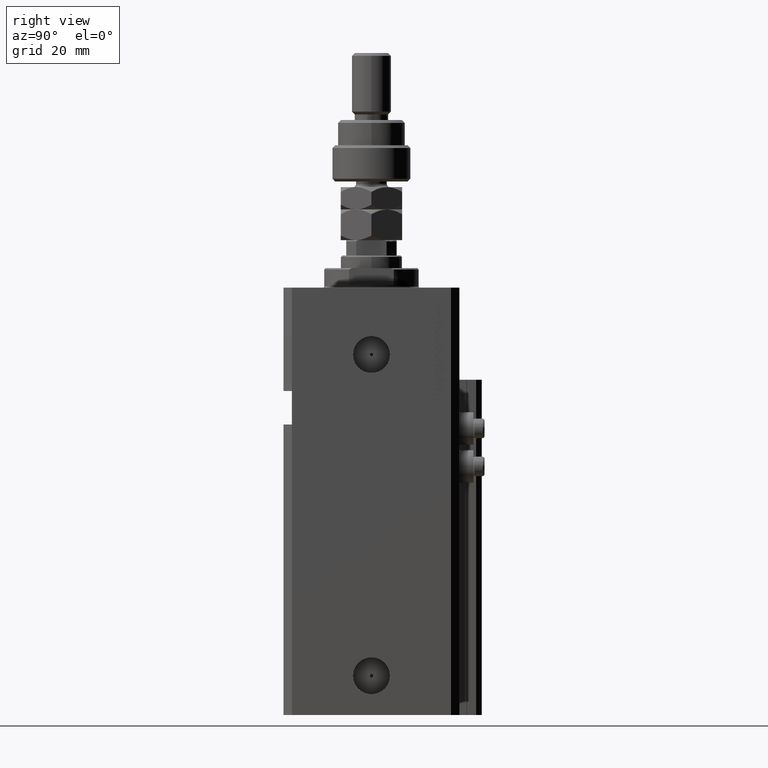
[diagram: clean part render]
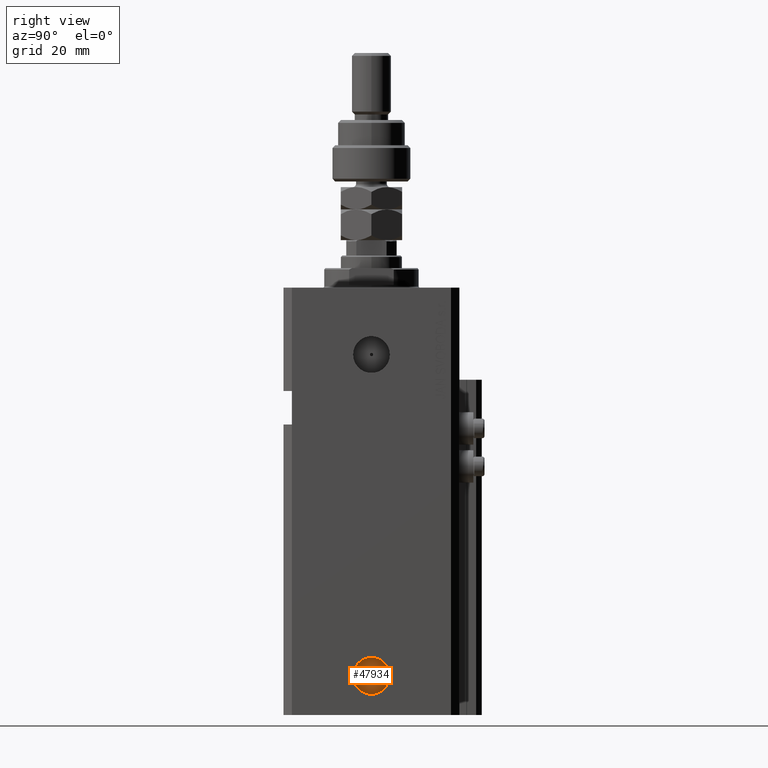
[diagram: same view with one face highlighted and labeled with its STEP entity id]
A machine part, right view. The second image highlights one B-rep face of the part: STEP entity #47934.
In plain terms, the highlighted planar face has unit normal (1, -0, 0).
Its self-contained STEP definition (entity closure, byte-faithful):
#145 = CIRCLE ( 'NONE', #46692, 0.6250000000000066613 ) ;
#1316 = EDGE_LOOP ( 'NONE', ( #24756, #35277 ) ) ;
#2272 = ORIENTED_EDGE ( 'NONE', *, *, #25096, .T. ) ;
#3832 = AXIS2_PLACEMENT_3D ( 'NONE', #50601, #43054, #38880 ) ;
#5837 = DIRECTION ( 'NONE',  ( 1.000000000000000000, -1.334402673828349134E-14, 0.000000000000000000 ) ) ;
#7003 = CARTESIAN_POINT ( 'NONE',  ( 29.40000000000025793, -0.6250000000002093881, -138.9999999999999432 ) ) ;
#11736 = DIRECTION ( 'NONE',  ( 1.000000000000000000, -1.334402673828349134E-14, 0.000000000000000000 ) ) ;
#11925 = FACE_OUTER_BOUND ( 'NONE', #33399, .T. ) ;
#12183 = DIRECTION ( 'NONE',  ( 1.334402673828349134E-14, 1.000000000000000000, 0.000000000000000000 ) ) ;
#12363 = AXIS2_PLACEMENT_3D ( 'NONE', #14167, #5837, #21727 ) ;
#14167 = CARTESIAN_POINT ( 'NONE',  ( 29.40000000000026503, -2.028760275683516938E-13, -138.9999999999999432 ) ) ;
#14527 = VERTEX_POINT ( 'NONE', #32521 ) ;
#15039 = CARTESIAN_POINT ( 'NONE',  ( 29.40000000000026503, -2.028760275683516938E-13, -138.9999999999999432 ) ) ;
#16091 = CARTESIAN_POINT ( 'NONE',  ( 29.40000000000026503, -2.028760275683516938E-13, -138.9999999999999432 ) ) ;
#20047 = AXIS2_PLACEMENT_3D ( 'NONE', #24501, #11736, #40351 ) ;
#20051 = EDGE_CURVE ( 'NONE', #25792, #46973, #49551, .T. ) ;
#21727 = DIRECTION ( 'NONE',  ( 1.318178933113078171E-14, 1.000000000000000000, 0.000000000000000000 ) ) ;
#23664 = ORIENTED_EDGE ( 'NONE', *, *, #34861, .T. ) ;
#24501 = CARTESIAN_POINT ( 'NONE',  ( 29.40000000000026503, -2.028760275683516938E-13, -138.9999999999999432 ) ) ;
#24756 = ORIENTED_EDGE ( 'NONE', *, *, #39720, .F. ) ;
#25096 = EDGE_CURVE ( 'NONE', #14527, #39816, #39756, .T. ) ;
#25792 = VERTEX_POINT ( 'NONE', #7003 ) ;
#31701 = CIRCLE ( 'NONE', #20047, 6.579999999999985860 ) ;
#32521 = CARTESIAN_POINT ( 'NONE',  ( 29.40000000000017977, -6.580000000000189253, -138.9999999999999432 ) ) ;
#33399 = EDGE_LOOP ( 'NONE', ( #23664, #2272 ) ) ;
#34834 = DIRECTION ( 'NONE',  ( 1.000000000000000000, -1.334402673828349134E-14, 0.000000000000000000 ) ) ;
#34861 = EDGE_CURVE ( 'NONE', #39816, #14527, #31701, .T. ) ;
#35277 = ORIENTED_EDGE ( 'NONE', *, *, #20051, .F. ) ;
#35357 = DIRECTION ( 'NONE',  ( 1.110223024625144708E-14, 1.000000000000000000, 0.000000000000000000 ) ) ;
#38880 = DIRECTION ( 'NONE',  ( 1.110223024625144708E-14, 1.000000000000000000, 0.000000000000000000 ) ) ;
#39554 = AXIS2_PLACEMENT_3D ( 'NONE', #16091, #47830, #12183 ) ;
#39720 = EDGE_CURVE ( 'NONE', #46973, #25792, #145, .T. ) ;
#39756 = CIRCLE ( 'NONE', #12363, 6.579999999999985860 ) ;
#39759 = PLANE ( 'NONE',  #39554 ) ;
#39816 = VERTEX_POINT ( 'NONE', #48582 ) ;
#40351 = DIRECTION ( 'NONE',  ( 1.318178933113078171E-14, 1.000000000000000000, 0.000000000000000000 ) ) ;
#43054 = DIRECTION ( 'NONE',  ( 1.000000000000000000, -1.334402673828349134E-14, 0.000000000000000000 ) ) ;
#43863 = CARTESIAN_POINT ( 'NONE',  ( 29.40000000000027214, 0.6249999999998038236, -138.9999999999999432 ) ) ;
#46692 = AXIS2_PLACEMENT_3D ( 'NONE', #15039, #34834, #35357 ) ;
#46973 = VERTEX_POINT ( 'NONE', #43863 ) ;
#47830 = DIRECTION ( 'NONE',  ( 1.000000000000000000, -1.334402673828349134E-14, 0.000000000000000000 ) ) ;
#47934 = ADVANCED_FACE ( 'NONE', ( #50963, #11925 ), #39759, .T. ) ;
#48582 = CARTESIAN_POINT ( 'NONE',  ( 29.40000000000035385, 6.579999999999783356, -138.9999999999999432 ) ) ;
#49551 = CIRCLE ( 'NONE', #3832, 0.6250000000000066613 ) ;
#50601 = CARTESIAN_POINT ( 'NONE',  ( 29.40000000000026503, -2.028760275683516938E-13, -138.9999999999999432 ) ) ;
#50963 = FACE_BOUND ( 'NONE', #1316, .T. ) ;